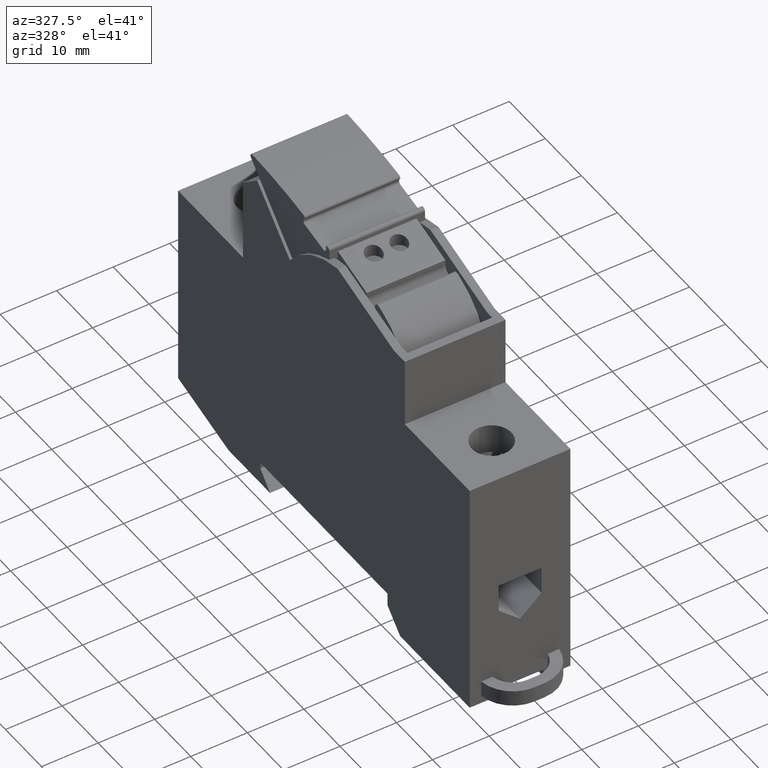
[diagram: clean part render]
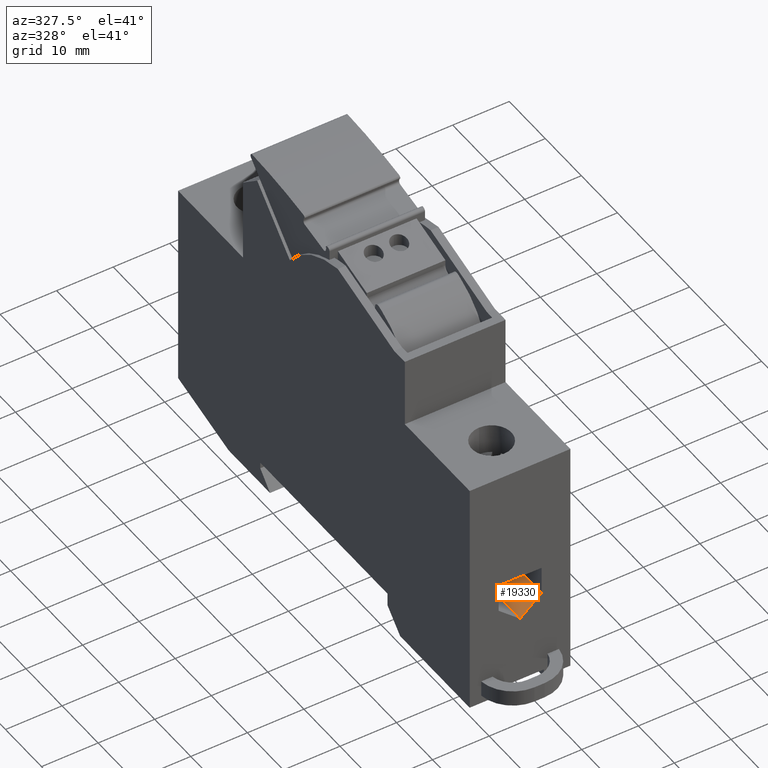
[diagram: same view with one face highlighted and labeled with its STEP entity id]
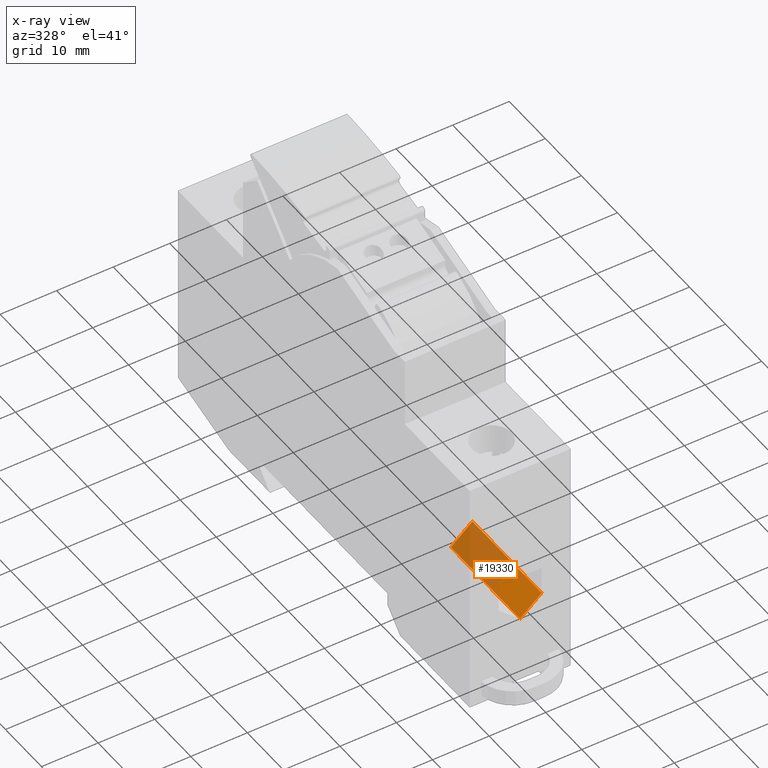
[diagram: x-ray of the same camera — body ghosted, the highlighted face saturated]
A machine part, auxiliary view. The second image highlights one B-rep face of the part: STEP entity #19330.
The next image is the same camera in x-ray: the body ghosted, the highlighted face saturated — about 60% of this face is hidden behind the body in this view.
In plain terms, the highlighted planar face has unit normal (0.6585, 0, -0.7526).
Its self-contained STEP definition (entity closure, byte-faithful):
#12820=CARTESIAN_POINT('',(-88.252305,-58.159094,0.));
#12830=DIRECTION('',(0.,0.658504607868518,0.752576694706878));
#12840=VECTOR('',#12830,1.);
#12850=LINE('',#12820,#12840);
#12860=CARTESIAN_POINT('',(-88.252305,-69.271594,-12.7));
#12870=VERTEX_POINT('',#12860);
#12880=CARTESIAN_POINT('',(-88.252305,-65.946594,-8.90000000000001));
#12890=VERTEX_POINT('',#12880);
#12900=EDGE_CURVE('',#12870,#12890,#12850,.T.);
#18580=CARTESIAN_POINT('',(-69.052305,-65.946594,-8.90000000000001));
#18590=VERTEX_POINT('',#18580);
#18620=CARTESIAN_POINT('',(0.,-65.946594,-8.90000000000001));
#18630=DIRECTION('',(-1.,0.,0.));
#18640=VECTOR('',#18630,1.);
#18650=LINE('',#18620,#18640);
#18660=EDGE_CURVE('',#18590,#12890,#18650,.T.);
#18950=CARTESIAN_POINT('',(-69.052305,-69.271594,-12.7));
#18960=VERTEX_POINT('',#18950);
#18990=CARTESIAN_POINT('',(-69.052305,-58.159094,0.));
#19000=DIRECTION('',(0.,0.658504607868518,0.752576694706878));
#19010=VECTOR('',#19000,1.);
#19020=LINE('',#18990,#19010);
#19030=EDGE_CURVE('',#18960,#18590,#19020,.T.);
#19170=CARTESIAN_POINT('',(-88.252305,-65.946594,-8.89999999999999));
#19180=DIRECTION('',(0.,0.752576694706878,-0.658504607868518));
#19190=DIRECTION('',(0.,0.658504607868518,0.752576694706878));
#19200=AXIS2_PLACEMENT_3D('',#19170,#19180,#19190);
#19210=PLANE('',#19200);
#19220=ORIENTED_EDGE('',*,*,#12900,.F.);
#19230=ORIENTED_EDGE('',*,*,#18660,.T.);
#19240=ORIENTED_EDGE('',*,*,#19030,.T.);
#19250=CARTESIAN_POINT('',(0.,-69.271594,-12.7));
#19260=DIRECTION('',(1.,0.,0.));
#19270=VECTOR('',#19260,1.);
#19280=LINE('',#19250,#19270);
#19290=EDGE_CURVE('',#12870,#18960,#19280,.T.);
#19300=ORIENTED_EDGE('',*,*,#19290,.T.);
#19310=EDGE_LOOP('',(#19300,#19240,#19230,#19220));
#19320=FACE_OUTER_BOUND('',#19310,.T.);
#19330=ADVANCED_FACE('',(#19320),#19210,.F.);